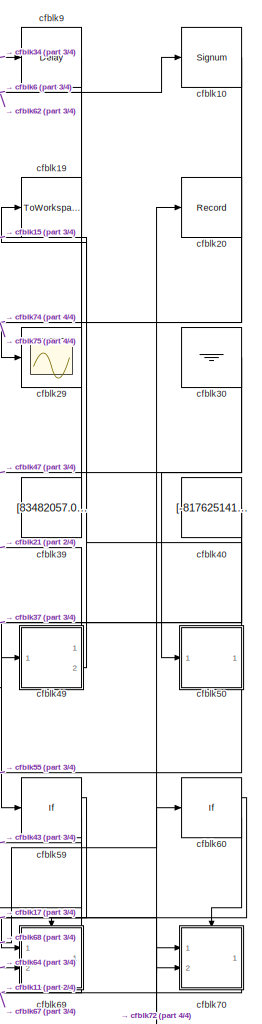
[diagram: root canvas - part 1/4, right side, full height]
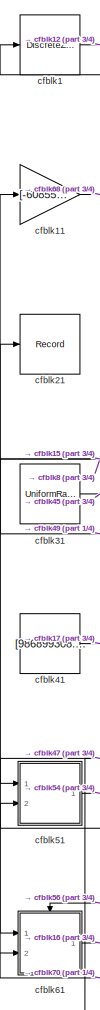
[diagram: root canvas - part 2/4, left side, full height]
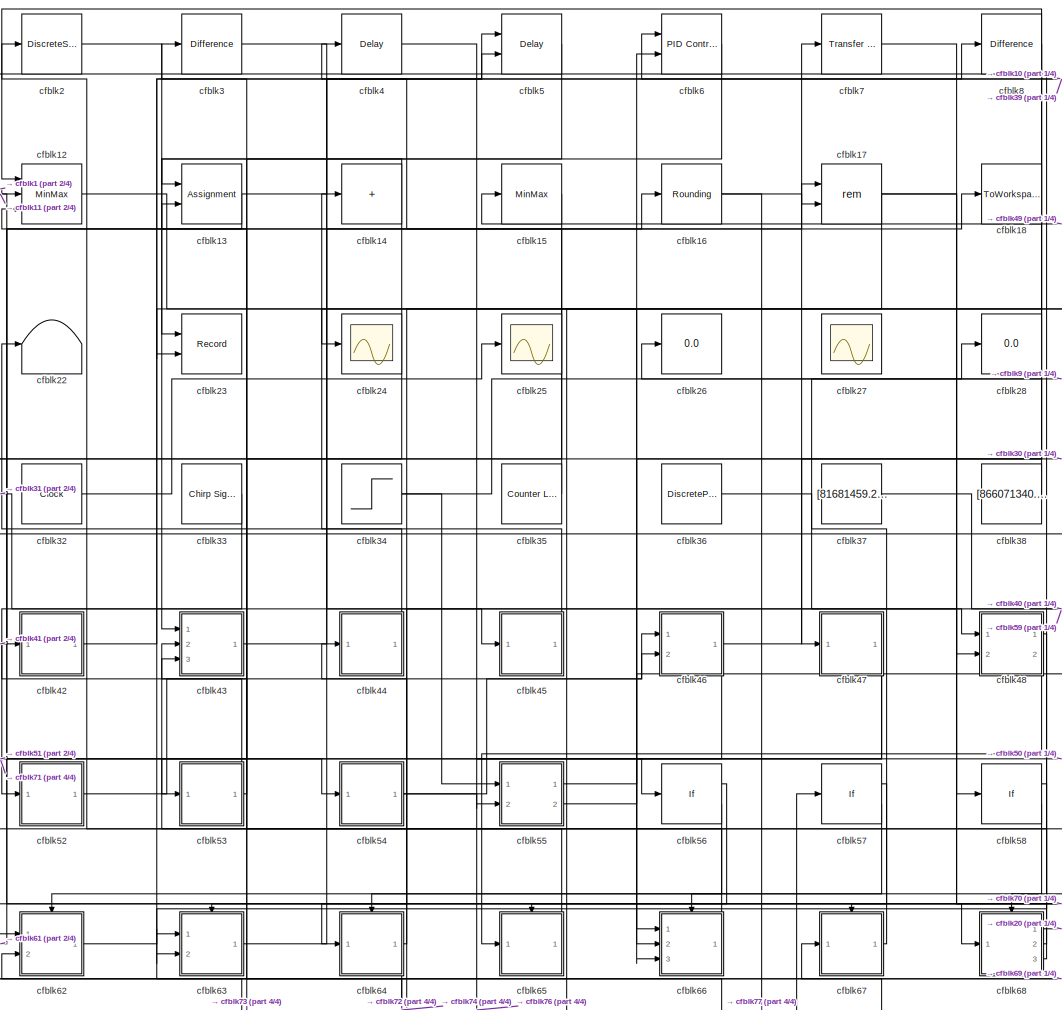
[diagram: root canvas - part 3/4, center side, full height]
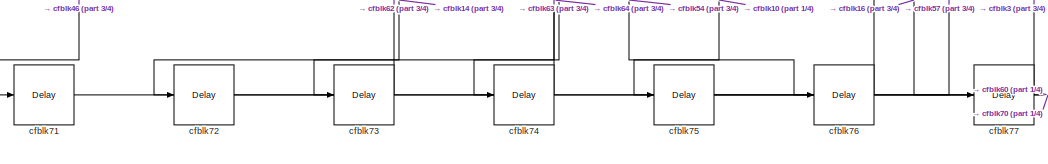
[diagram: root canvas - part 4/4, bottom center region]
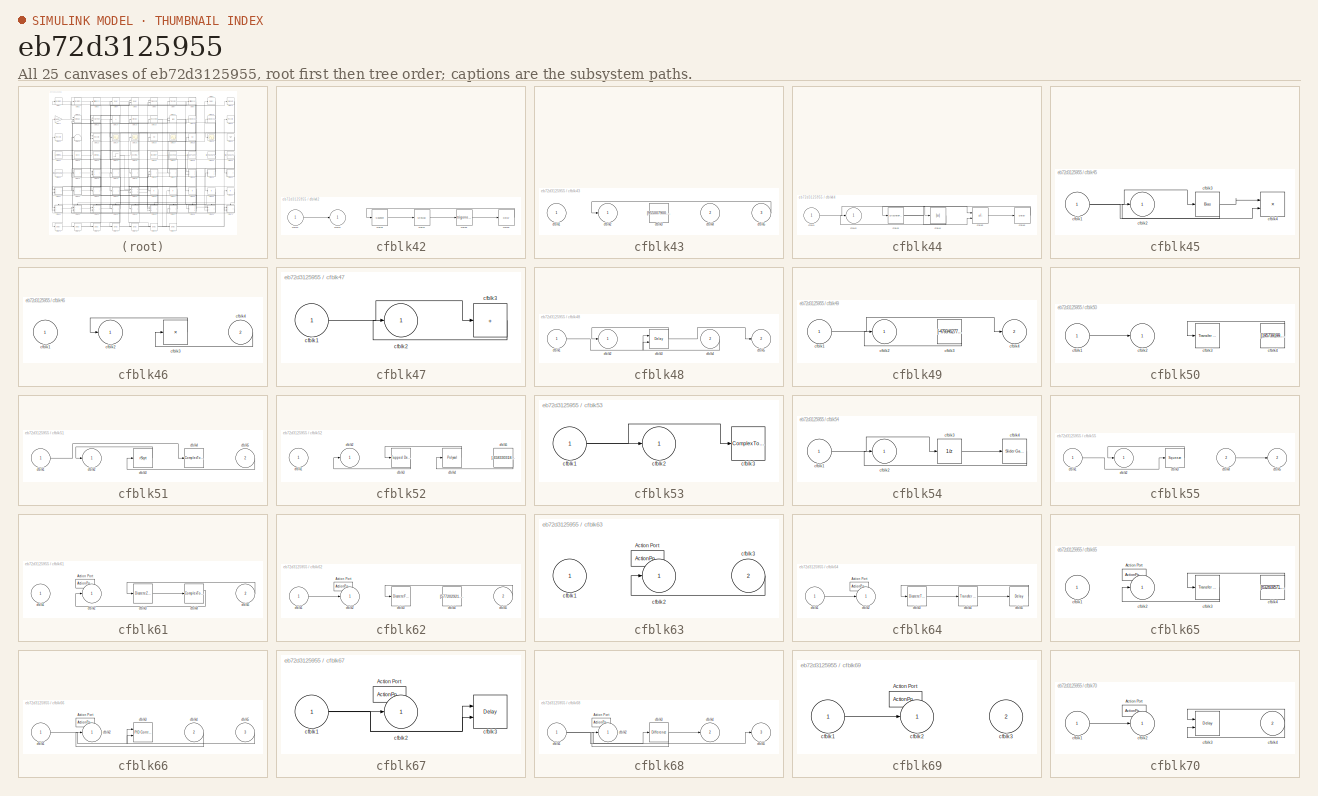
[diagram: thumbnail index - all 25 canvases of the model, root first then tree order]
MODEL slx_eb72d3125955
KIND model
CONFIG AbsTol = auto
CONFIG EnableMultiTasking = off
CONFIG FixedStep = auto
CONFIG MaxStep = auto
CONFIG MinStep = auto
CONFIG RelTol = 1e-3
CONFIG SampleTimeConstraint = Unconstrained
CONFIG SolverName = VariableStepAuto
CONFIG StartTime = 0.0
CONFIG StopTime = 10.0
BLOCK [DiscreteZeroPole] cfblk1
  Gain = 1
  Poles = [0 0.5]
BLOCK [Signum] cfblk10
BLOCK [Gain] cfblk11
  Gain = [-608557521.648675]
BLOCK [MinMax] cfblk12
  Inputs = 3
  Ports = [3, 1]
BLOCK [Assignment] cfblk13
  DiagnosticForDimensions = Warning
  IndexOptions = Index vector (dialog)
  Indices = 1
  OutputSizes = 1
  Ports = [2, 1]
BLOCK [Sum] cfblk14
  IconShape = rectangular
  Inputs = +
  Ports = [1, 1]
BLOCK [MinMax] cfblk15
  Function = max
  Ports = [1, 1]
BLOCK [Rounding] cfblk16
BLOCK [Math] cfblk17
  Operator = rem
  Ports = [2, 1]
BLOCK [ToWorkspace] cfblk18
  FixptAsFi = on
  MaxDataPoints = inf
  Ports = [1]
  SampleTime = -1
  SaveFormat = Timeseries
  VariableName = bfncngp
BLOCK [ToWorkspace] cfblk19
  FixptAsFi = on
  MaxDataPoints = inf
  Ports = [1]
  SampleTime = -1
  SaveFormat = Timeseries
  VariableName = mslfxss
BLOCK [DiscreteStateSpace] cfblk2
BLOCK [Record] cfblk20
  FileSettingsInternal = {"entries":[{"content":{"excelSettings":{"content":{},"type":"Streamout.ExcelSettings"}},"type":"Streamout.FileSettingStorage","uuid":"78cab240-d707-46c0-bab2-71765f668cae"}],"packageUris":["http://schema.mathworks.com/mf0/streamout_blocks/R2020a"],"version":"1.0"}
  Ports = [1]
  SignalsInternal = {"entries":[{"content":{"signals":[{"content":{"blockPath":["sampleModel137/cfblk20"],"channel":[],"dimensions":[1],"domain":"sampleModel137/cfblk20","lineColor":"#77ac30","plots":[1],"port":1,"sid":[""],"signalID":4817,"signalName":"cfblk68:1"},"type":"RecordBlkView.Signal","uuid":"5ba74064-0a93-45ca-96c5-9e64b5215f86"}]},"type":"RecordBlkView.InputSignals","uuid":"459eb6df-0716-4f70-a343-e867666...<+99ch>
  VisualizationBindings = {"sparklinesplugin":{"info":[{"bindingParametersList":[],"subplotID":1}]}}
BLOCK [Record] cfblk21
  FileSettingsInternal = {"entries":[{"content":{"excelSettings":{"content":{},"type":"Streamout.ExcelSettings"}},"type":"Streamout.FileSettingStorage","uuid":"bc3cb0e1-2b9a-4902-8bb5-5abf4e2b3de7"}],"packageUris":["http://schema.mathworks.com/mf0/streamout_blocks/R2020a"],"version":"1.0"}
  Ports = [1]
  SignalsInternal = {"entries":[{"content":{"signals":[{"content":{"blockPath":["sampleModel137/cfblk21"],"channel":[],"dimensions":[1],"domain":"sampleModel137/cfblk21","lineColor":"#4dbeee","plots":[1],"port":1,"sid":[""],"signalID":4821,"signalName":"cfblk49:1"},"type":"RecordBlkView.Signal","uuid":"d4e94c7a-f449-4d3a-8495-2eef223feb6d"}]},"type":"RecordBlkView.InputSignals","uuid":"f1cf74e8-d586-40d0-87c1-09232b5...<+99ch>
  VisualizationBindings = {"sparklinesplugin":{"info":[{"bindingParametersList":[],"subplotID":1}]}}
BLOCK [Terminator] cfblk22
BLOCK [Record] cfblk23
  CompatibilityTag = XY
  FileSettingsInternal = {"entries":[{"content":{"excelSettings":{"content":{},"type":"Streamout.ExcelSettings"}},"type":"Streamout.FileSettingStorage","uuid":"2b119019-7ec8-40aa-a939-0d8a92bc28e8"}],"packageUris":["http://schema.mathworks.com/mf0/streamout_blocks/R2020a"],"version":"1.0"}
  Layout = [1 1]
  Ports = [2]
  SignalsInternal = {"entries":[{"content":{"signals":[{"content":{"blockPath":["sampleModel137/cfblk23"],"channel":[],"dimensions":[1],"domain":"sampleModel137/cfblk23","lineColor":"#a2142f","plots":[1],"port":1,"sid":[""],"signalID":4825,"signalName":"cfblk2"},"type":"RecordBlkView.Signal","uuid":"4b9917a8-76f8-4205-8d4f-0c51dee1f9f1"},{"content":{"blockPath":["sampleModel137/cfblk23"],"channel":[],"dimensions":[1]...<+381ch>
  VisualizationBindings = {"xyplotplugin":{"info":[{"series":[{"bindingParametersList":[{"parameter":"X-Axis","signalID":4825,"signalName":"cfblk2"},{"parameter":"Y-Axis","signalID":4829,"signalName":"cfblk8"}],"seriesID":38646}],"subplotID":1}]}}
BLOCK [Scope] cfblk24
  Floating = off
  NumInputPorts = 1
  Ports = [1]
BLOCK [Scope] cfblk25
  Floating = off
  NumInputPorts = 1
  Ports = [1]
BLOCK [Display] cfblk26
  Decimation = 1
  Ports = [1]
BLOCK [Scope] cfblk27
  Floating = on
  NumInputPorts = 1
  Ports = []
BLOCK [Display] cfblk28
  Decimation = 1
  Ports = [1]
BLOCK [Scope] cfblk29
  Floating = off
  NumInputPorts = 1
  Ports = [1]
BLOCK [Reference] cfblk3  REF=simulink/Discrete/Difference
  Ports = [1, 1]
  SourceBlock = simulink/Discrete/Difference
  SourceProductBaseCode = SL
  SourceType = Difference
BLOCK [Ground] cfblk30
BLOCK [UniformRandomNumber] cfblk31
  Maximum = [821587507.931127]
  Minimum = [-3748405739.129770]
  SampleTime = 0.1
  Seed = [41408692.000000]
BLOCK [Clock] cfblk32
BLOCK [Reference] cfblk33  REF=simulink/Sources/Chirp Signal
  Ports = [0, 1]
  SourceBlock = simulink/Sources/Chirp Signal
  SourceProductBaseCode = SL
  SourceType = chirp
BLOCK [Step] cfblk34
  After = [-424292233.508765]
  Before = [-628794468.071128]
  SampleTime = 0
  Time = [44.000000]
BLOCK [Reference] cfblk35  REF=simulink/Sources/Counter
Limited
  Ports = [0, 1]
  SourceBlock = simulink/Sources/Counter\nLimited
  SourceProductBaseCode = SL
  SourceType = Counter Limited
BLOCK [DiscretePulseGenerator] cfblk36
  Amplitude = [628298384.607478]
  Period = [32439850.198564]
  PhaseDelay = [8.000000]
  Ports = [0, 1]
  PulseType = Time based
  PulseWidth = 5
BLOCK [Constant] cfblk37
  SampleTime = 1
  Value = [81681459.214216]
BLOCK [Constant] cfblk38
  SampleTime = 1
  Value = [866071340.352802]
BLOCK [Constant] cfblk39
  SampleTime = 1
  Value = [83482057.081967]
BLOCK [Delay] cfblk4
  InputPortMap = u0
  Ports = [1, 1]
  SampleTime = 1
BLOCK [Constant] cfblk40
  SampleTime = 1
  Value = [-817625141.120523]
BLOCK [Constant] cfblk41
  SampleTime = 1
  Value = [986899308.796991]
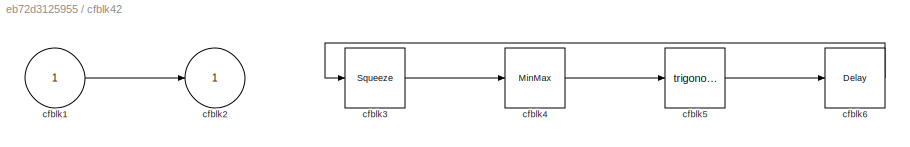
BLOCK [SubSystem] cfblk42
  Ports = [1, 1]
  RequestExecContextInheritance = off
BLOCK [Inport] cfblk42/cfblk1
BLOCK [Outport] cfblk42/cfblk2
BLOCK [Squeeze] cfblk42/cfblk3
BLOCK [MinMax] cfblk42/cfblk4
  Function = max
  Ports = [1, 1]
BLOCK [Trigonometry] cfblk42/cfblk5
  Ports = [1, 1]
BLOCK [Delay] cfblk42/cfblk6
  InputPortMap = u0
  Ports = [1, 1]
  SampleTime = 1
BLOCK [SubSystem] cfblk43
  Ports = [3, 1]
  RequestExecContextInheritance = off
BLOCK [Inport] cfblk43/cfblk1
BLOCK [Outport] cfblk43/cfblk2
BLOCK [Constant] cfblk43/cfblk3
  SampleTime = 1
  Value = [955007900.458523]
BLOCK [Inport] cfblk43/cfblk4
  Port = 2
BLOCK [Inport] cfblk43/cfblk5
  Port = 3
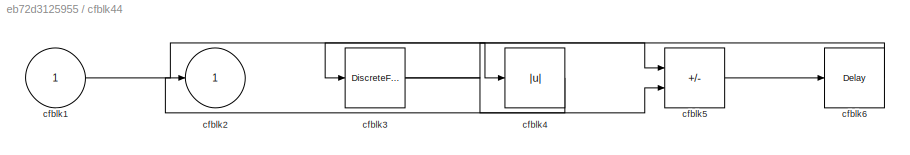
BLOCK [SubSystem] cfblk44
  Ports = [1, 1]
  RequestExecContextInheritance = off
BLOCK [Inport] cfblk44/cfblk1
BLOCK [Outport] cfblk44/cfblk2
BLOCK [DiscreteFilter] cfblk44/cfblk3
  InputPortMap = u0
  Ports = [1, 1]
  SampleTime = 1
BLOCK [Abs] cfblk44/cfblk4
  SaturateOnIntegerOverflow = off
BLOCK [Sum] cfblk44/cfblk5
  IconShape = rectangular
  Inputs = +-
  Ports = [2, 1]
BLOCK [Delay] cfblk44/cfblk6
  InputPortMap = u0
  Ports = [1, 1]
  SampleTime = 1
BLOCK [SubSystem] cfblk45
  Ports = [1, 1]
  RequestExecContextInheritance = off
BLOCK [Inport] cfblk45/cfblk1
BLOCK [Outport] cfblk45/cfblk2
BLOCK [Bias] cfblk45/cfblk3
  Bias = [-716241276.634406]
  SaturateOnIntegerOverflow = off
BLOCK [Product] cfblk45/cfblk4
  Ports = [2, 1]
BLOCK [SubSystem] cfblk46
  Ports = [2, 1]
  RequestExecContextInheritance = off
BLOCK [Inport] cfblk46/cfblk1
BLOCK [Outport] cfblk46/cfblk2
BLOCK [Product] cfblk46/cfblk3
  Inputs = *
  Ports = [1, 1]
BLOCK [Inport] cfblk46/cfblk4
  Port = 2
BLOCK [SubSystem] cfblk47
  Ports = [1, 1]
  RequestExecContextInheritance = off
BLOCK [Inport] cfblk47/cfblk1
BLOCK [Outport] cfblk47/cfblk2
BLOCK [Sum] cfblk47/cfblk3
  IconShape = rectangular
  Inputs = +
  Ports = [1, 1]
BLOCK [SubSystem] cfblk48
  Ports = [2, 2]
  RequestExecContextInheritance = off
BLOCK [Inport] cfblk48/cfblk1
BLOCK [Outport] cfblk48/cfblk2
BLOCK [Delay] cfblk48/cfblk3
  DelayLengthSource = Input port
  InputPortMap = u0,p1
  Ports = [2, 1]
  SampleTime = 1
BLOCK [Inport] cfblk48/cfblk4
  Port = 2
BLOCK [Outport] cfblk48/cfblk5
  Port = 2
BLOCK [SubSystem] cfblk49
  Ports = [1, 2]
  RequestExecContextInheritance = off
BLOCK [Inport] cfblk49/cfblk1
BLOCK [Outport] cfblk49/cfblk2
BLOCK [Constant] cfblk49/cfblk3
  SampleTime = 1
  Value = [-479346277.311574]
BLOCK [Outport] cfblk49/cfblk4
  Port = 2
BLOCK [Delay] cfblk5
  InputPortMap = u0,e6
  Ports = [2, 1]
  SampleTime = 1
  ShowEnablePort = on
BLOCK [SubSystem] cfblk50
  Ports = [1, 1]
  RequestExecContextInheritance = off
BLOCK [Inport] cfblk50/cfblk1
BLOCK [Outport] cfblk50/cfblk2
BLOCK [Reference] cfblk50/cfblk3  REF=simulink/Discrete/Transfer Fcn
Lead or Lag
  Ports = [1, 1]
  SourceBlock = simulink/Discrete/Transfer Fcn\nLead or Lag
  SourceProductBaseCode = SL
  SourceType = Lead or Lag Compensator
BLOCK [Constant] cfblk50/cfblk4
  SampleTime = 1
  Value = [195739199.430288]
BLOCK [SubSystem] cfblk51
  Ports = [2, 1]
  RequestExecContextInheritance = off
BLOCK [Inport] cfblk51/cfblk1
BLOCK [Outport] cfblk51/cfblk2
BLOCK [Sqrt] cfblk51/cfblk3
  AlgorithmType = Newton-Raphson
  Operator = rSqrt
BLOCK [ComplexToRealImag] cfblk51/cfblk4
  Ports = [1, 2]
BLOCK [Inport] cfblk51/cfblk5
  Port = 2
BLOCK [SubSystem] cfblk52
  Ports = [1, 1]
  RequestExecContextInheritance = off
BLOCK [Inport] cfblk52/cfblk1
BLOCK [Outport] cfblk52/cfblk2
BLOCK [Reference] cfblk52/cfblk3  REF=simulink/Discrete/Tapped Delay
  Ports = [1, 1]
  SourceBlock = simulink/Discrete/Tapped Delay
  SourceProductBaseCode = SL
  SourceType = Tapped Delay Line
BLOCK [Polyval] cfblk52/cfblk4
  Coefs = [ +2.081618890e-019, -1.441693666e-014, +4.719686976e-010, -8.536869453e-006, +1.621573104e-001, -8.087801117e+001 ]
BLOCK [Constant] cfblk52/cfblk5
  SampleTime = 1
  Value = [-658330318.926131]
BLOCK [SubSystem] cfblk53
  Ports = [1, 1]
  RequestExecContextInheritance = off
BLOCK [Inport] cfblk53/cfblk1
BLOCK [Outport] cfblk53/cfblk2
BLOCK [ComplexToMagnitudeAngle] cfblk53/cfblk3
  Ports = [1, 2]
BLOCK [SubSystem] cfblk54
  Ports = [1, 1]
  RequestExecContextInheritance = off
BLOCK [Inport] cfblk54/cfblk1
BLOCK [Outport] cfblk54/cfblk2
BLOCK [UnitDelay] cfblk54/cfblk3
  HasFrameUpgradeWarning = on
BLOCK [Reference] cfblk54/cfblk4  REF=simulink/Math
Operations/Slider
Gain
  Ports = [1, 1]
  SourceBlock = simulink/Math\nOperations/Slider\nGain
  SourceProductBaseCode = SL
  SourceType = Slider Gain
BLOCK [SubSystem] cfblk55
  Ports = [2, 2]
  RequestExecContextInheritance = off
BLOCK [Inport] cfblk55/cfblk1
BLOCK [Outport] cfblk55/cfblk2
BLOCK [Squeeze] cfblk55/cfblk3
BLOCK [Inport] cfblk55/cfblk4
  Port = 2
BLOCK [Outport] cfblk55/cfblk5
  Port = 2
BLOCK [If] cfblk56
  IfExpression = u1 >= 0
  Ports = [1, 2]
  SampleTime = 1
BLOCK [If] cfblk57
  IfExpression = u1 >= 0
  Ports = [1, 2]
  SampleTime = 1
BLOCK [If] cfblk58
  IfExpression = u1 >= 0
  Ports = [1, 2]
  SampleTime = 1
BLOCK [If] cfblk59
  IfExpression = u1 >= 0
  Ports = [1, 2]
  SampleTime = 1
BLOCK [Reference] cfblk6  REF=slpidlib/PID Controller (2DOF)
  Ports = [2, 1]
  SourceBlock = slpidlib/PID Controller (2DOF)
  SourceProductBaseCode = SL
  SourceType = PID 2dof
BLOCK [If] cfblk60
  IfExpression = u1 >= 0
  Ports = [1, 2]
  SampleTime = 1
BLOCK [SubSystem] cfblk61
  Ports = [2, 1, 0, 0, 0, 0, 0, 1]
  RequestExecContextInheritance = off
  TreatAsAtomicUnit = on
BLOCK [ActionPort] cfblk61/Action Port
  ActionPortLabel = if(u1 >= 0)
BLOCK [Inport] cfblk61/cfblk1
BLOCK [Outport] cfblk61/cfblk2
BLOCK [DiscreteZeroPole] cfblk61/cfblk3
  Gain = 1
  Poles = [0 0.5]
  SampleTime = -1
BLOCK [ComplexToMagnitudeAngle] cfblk61/cfblk4
  Ports = [1, 2]
BLOCK [Inport] cfblk61/cfblk5
  Port = 2
BLOCK [SubSystem] cfblk62
  Ports = [2, 1, 0, 0, 0, 0, 0, 1]
  RequestExecContextInheritance = off
  TreatAsAtomicUnit = on
BLOCK [ActionPort] cfblk62/Action Port
  ActionPortLabel = else
BLOCK [Inport] cfblk62/cfblk1
BLOCK [Outport] cfblk62/cfblk2
BLOCK [DiscreteFilter] cfblk62/cfblk3
  InputPortMap = u0
  Ports = [1, 1]
BLOCK [Constant] cfblk62/cfblk4
  SampleTime = 1
  Value = [577202921.715631]
BLOCK [Inport] cfblk62/cfblk5
  Port = 2
BLOCK [SubSystem] cfblk63
  Ports = [2, 1, 0, 0, 0, 0, 0, 1]
  RequestExecContextInheritance = off
  TreatAsAtomicUnit = on
BLOCK [ActionPort] cfblk63/Action Port
  ActionPortLabel = if(u1 >= 0)
BLOCK [Inport] cfblk63/cfblk1
BLOCK [Outport] cfblk63/cfblk2
BLOCK [Inport] cfblk63/cfblk3
  Port = 2
BLOCK [SubSystem] cfblk64
  Ports = [1, 1, 0, 0, 0, 0, 0, 1]
  RequestExecContextInheritance = off
  TreatAsAtomicUnit = on
BLOCK [ActionPort] cfblk64/Action Port
  ActionPortLabel = else
BLOCK [Inport] cfblk64/cfblk1
BLOCK [Outport] cfblk64/cfblk2
BLOCK [DiscreteTransferFcn] cfblk64/cfblk3
  InputPortMap = u0
  Ports = [1, 1]
BLOCK [Reference] cfblk64/cfblk4  REF=simulink/Discrete/Transfer Fcn
Lead or Lag
  Ports = [1, 1]
  SourceBlock = simulink/Discrete/Transfer Fcn\nLead or Lag
  SourceProductBaseCode = SL
  SourceType = Lead or Lag Compensator
BLOCK [Delay] cfblk64/cfblk5
  InputPortMap = u0
  Ports = [1, 1]
BLOCK [SubSystem] cfblk65
  Ports = [1, 1, 0, 0, 0, 0, 0, 1]
  RequestExecContextInheritance = off
  TreatAsAtomicUnit = on
BLOCK [ActionPort] cfblk65/Action Port
  ActionPortLabel = if(u1 >= 0)
BLOCK [Inport] cfblk65/cfblk1
BLOCK [Outport] cfblk65/cfblk2
BLOCK [Reference] cfblk65/cfblk3  REF=simulink/Discrete/Transfer Fcn
Real Zero
  Ports = [1, 1]
  SourceBlock = simulink/Discrete/Transfer Fcn\nReal Zero
  SourceProductBaseCode = SL
  SourceType = Transfer Fcn Real Zero
BLOCK [Constant] cfblk65/cfblk4
  SampleTime = 1
  Value = [632609571.556403]
BLOCK [SubSystem] cfblk66
  Ports = [3, 1, 0, 0, 0, 0, 0, 1]
  RequestExecContextInheritance = off
  TreatAsAtomicUnit = on
BLOCK [ActionPort] cfblk66/Action Port
  ActionPortLabel = else
BLOCK [Inport] cfblk66/cfblk1
BLOCK [Outport] cfblk66/cfblk2
BLOCK [Reference] cfblk66/cfblk3  REF=slpidlib/PID Controller (2DOF)
  Ports = [2, 1]
  SourceBlock = slpidlib/PID Controller (2DOF)
  SourceProductBaseCode = SL
  SourceType = PID 2dof
BLOCK [Inport] cfblk66/cfblk4
  Port = 2
BLOCK [Inport] cfblk66/cfblk5
  Port = 3
BLOCK [SubSystem] cfblk67
  Ports = [1, 1, 0, 0, 0, 0, 0, 1]
  RequestExecContextInheritance = off
  TreatAsAtomicUnit = on
BLOCK [ActionPort] cfblk67/Action Port
  ActionPortLabel = if(u1 >= 0)
BLOCK [Inport] cfblk67/cfblk1
BLOCK [Outport] cfblk67/cfblk2
BLOCK [Delay] cfblk67/cfblk3
  DelayLengthSource = Input port
  InputPortMap = u0,p1
  Ports = [2, 1]
BLOCK [SubSystem] cfblk68
  Ports = [1, 3, 0, 0, 0, 0, 0, 1]
  RequestExecContextInheritance = off
  TreatAsAtomicUnit = on
BLOCK [ActionPort] cfblk68/Action Port
  ActionPortLabel = else
BLOCK [Inport] cfblk68/cfblk1
BLOCK [Outport] cfblk68/cfblk2
BLOCK [Reference] cfblk68/cfblk3  REF=simulink/Discrete/Difference
  Ports = [1, 1]
  SourceBlock = simulink/Discrete/Difference
  SourceProductBaseCode = SL
  SourceType = Difference
BLOCK [Outport] cfblk68/cfblk4
  Port = 2
BLOCK [Outport] cfblk68/cfblk5
  Port = 3
BLOCK [SubSystem] cfblk69
  Ports = [2, 1, 0, 0, 0, 0, 0, 1]
  RequestExecContextInheritance = off
  TreatAsAtomicUnit = on
BLOCK [ActionPort] cfblk69/Action Port
  ActionPortLabel = if(u1 >= 0)
BLOCK [Inport] cfblk69/cfblk1
BLOCK [Outport] cfblk69/cfblk2
BLOCK [Inport] cfblk69/cfblk3
  Port = 2
BLOCK [Reference] cfblk7  REF=simulink/Discrete/Transfer Fcn
First Order
  Ports = [1, 1]
  SourceBlock = simulink/Discrete/Transfer Fcn\nFirst Order
  SourceProductBaseCode = SL
  SourceType = First Order Transfer Fcn
BLOCK [SubSystem] cfblk70
  Ports = [2, 1, 0, 0, 0, 0, 0, 1]
  RequestExecContextInheritance = off
  TreatAsAtomicUnit = on
BLOCK [ActionPort] cfblk70/Action Port
  ActionPortLabel = else
BLOCK [Inport] cfblk70/cfblk1
BLOCK [Outport] cfblk70/cfblk2
BLOCK [Delay] cfblk70/cfblk3
  InputPortMap = u0,e6
  Ports = [2, 1]
  ShowEnablePort = on
BLOCK [Inport] cfblk70/cfblk4
  Port = 2
BLOCK [Delay] cfblk71
  InputPortMap = u0
  Ports = [1, 1]
  SampleTime = 1
BLOCK [Delay] cfblk72
  InputPortMap = u0
  Ports = [1, 1]
  SampleTime = 1
BLOCK [Delay] cfblk73
  InputPortMap = u0
  Ports = [1, 1]
  SampleTime = 1
BLOCK [Delay] cfblk74
  InputPortMap = u0
  Ports = [1, 1]
  SampleTime = 1
BLOCK [Delay] cfblk75
  InputPortMap = u0
  Ports = [1, 1]
  SampleTime = 1
BLOCK [Delay] cfblk76
  InputPortMap = u0
  Ports = [1, 1]
  SampleTime = 1
BLOCK [Delay] cfblk77
  InputPortMap = u0
  Ports = [1, 1]
  SampleTime = 1
BLOCK [Reference] cfblk8  REF=simulink/Discrete/Difference
  Ports = [1, 1]
  SourceBlock = simulink/Discrete/Difference
  SourceProductBaseCode = SL
  SourceType = Difference
BLOCK [Delay] cfblk9
  InputPortMap = u0
  Ports = [1, 1]
  SampleTime = 1
NET cfblk10:1 -> cfblk74:1, cfblk75:1
LINE cfblk11:1 -> cfblk68:1
LINE cfblk12:1 -> cfblk66:1
NET cfblk13:1 -> cfblk12:3, cfblk5:1
NET cfblk14:1 -> cfblk13:1, cfblk73:1
LINE cfblk15:1 -> cfblk61:1
NET cfblk16:1 -> cfblk17:2, cfblk77:1
NET cfblk17:1 -> cfblk24:1, cfblk69:1, cfblk70:2
LINE cfblk1:1 -> cfblk12:2
LINE cfblk2:1 -> cfblk23:1
NET cfblk30:1 -> cfblk47:1, cfblk50:1
LINE cfblk31:1 -> cfblk45:1
LINE cfblk32:1 -> cfblk25:1
LINE cfblk33:1 -> cfblk52:1
NET cfblk34:1 -> cfblk55:1, cfblk9:1
LINE cfblk35:1 -> cfblk4:1
LINE cfblk36:1 -> cfblk48:2
LINE cfblk37:1 -> cfblk59:1
LINE cfblk38:1 -> cfblk26:1
LINE cfblk39:1 -> cfblk6:1
LINE cfblk3:1 -> cfblk48:1
NET cfblk40:1 -> cfblk64:1, cfblk69:2
LINE cfblk41:1 -> cfblk17:1
LINE cfblk42/cfblk1:1 -> cfblk42/cfblk2:1
LINE cfblk42/cfblk3:1 -> cfblk42/cfblk4:1
LINE cfblk42/cfblk4:1 -> cfblk42/cfblk5:1
LINE cfblk42/cfblk5:1 -> cfblk42/cfblk6:1
LINE cfblk42/cfblk6:1 -> cfblk42/cfblk3:1
LINE cfblk42:1 -> cfblk5:2
LINE cfblk43/cfblk5:1 -> cfblk43/cfblk2:1
LINE cfblk43:1 -> cfblk18:1
LINE cfblk44/cfblk1:1 -> cfblk44/cfblk4:1
NET cfblk44/cfblk3:1 -> cfblk44/cfblk5:1, cfblk44/cfblk5:2
LINE cfblk44/cfblk4:1 -> cfblk44/cfblk2:1
LINE cfblk44/cfblk5:1 -> cfblk44/cfblk6:1
LINE cfblk44/cfblk6:1 -> cfblk44/cfblk3:1
LINE cfblk44:1 -> cfblk14:1
NET cfblk45/cfblk1:1 -> cfblk45/cfblk3:1, cfblk45/cfblk4:2
NET cfblk45/cfblk3:1 -> cfblk45/cfblk2:1, cfblk45/cfblk4:1
LINE cfblk45:1 -> cfblk22:1
LINE cfblk46/cfblk3:1 -> cfblk46/cfblk2:1
LINE cfblk46/cfblk4:1 -> cfblk46/cfblk3:1
NET cfblk46:1 -> cfblk71:1, cfblk7:1
LINE cfblk47/cfblk1:1 -> cfblk47/cfblk3:1
LINE cfblk47/cfblk3:1 -> cfblk47/cfblk2:1
NET cfblk47:1 -> cfblk51:1, cfblk66:2
LINE cfblk48/cfblk1:1 -> cfblk48/cfblk3:2
NET cfblk48/cfblk3:1 -> cfblk48/cfblk2:1, cfblk48/cfblk5:1
LINE cfblk48/cfblk4:1 -> cfblk48/cfblk3:1
LINE cfblk48:1 -> cfblk63:2
LINE cfblk48:2 -> cfblk65:1
LINE cfblk49/cfblk1:1 -> cfblk49/cfblk4:1
LINE cfblk49/cfblk3:1 -> cfblk49/cfblk2:1
LINE cfblk49:1 -> cfblk21:1
LINE cfblk49:2 -> cfblk15:1
LINE cfblk4:1 -> cfblk56:1
LINE cfblk50/cfblk1:1 -> cfblk50/cfblk2:1
LINE cfblk50/cfblk4:1 -> cfblk50/cfblk3:1
NET cfblk50:1 -> cfblk19:1, cfblk55:2
LINE cfblk51/cfblk1:1 -> cfblk51/cfblk4:1
LINE cfblk51/cfblk3:1 -> cfblk51/cfblk2:1
LINE cfblk51/cfblk5:1 -> cfblk51/cfblk3:1
LINE cfblk51:1 -> cfblk54:1
LINE cfblk52/cfblk3:1 -> cfblk52/cfblk2:1
LINE cfblk52/cfblk4:1 -> cfblk52/cfblk3:1
LINE cfblk52/cfblk5:1 -> cfblk52/cfblk4:1
LINE cfblk52:1 -> cfblk46:1
NET cfblk53/cfblk1:1 -> cfblk53/cfblk2:1, cfblk53/cfblk3:1
NET cfblk53:1 -> cfblk13:2, cfblk2:1
LINE cfblk54/cfblk1:1 -> cfblk54/cfblk3:1
LINE cfblk54/cfblk3:1 -> cfblk54/cfblk4:1
LINE cfblk54/cfblk4:1 -> cfblk54/cfblk2:1
NET cfblk54:1 -> cfblk46:2, cfblk76:1
LINE cfblk55/cfblk1:1 -> cfblk55/cfblk3:1
LINE cfblk55/cfblk3:1 -> cfblk55/cfblk2:1
LINE cfblk55/cfblk4:1 -> cfblk55/cfblk5:1
LINE cfblk55:1 -> cfblk6:2
LINE cfblk55:2 -> cfblk49:1
LINE cfblk56:1 -> cfblk61:ifaction
LINE cfblk56:2 -> cfblk62:ifaction
LINE cfblk57:1 -> cfblk63:ifaction
LINE cfblk57:2 -> cfblk64:ifaction
LINE cfblk58:1 -> cfblk65:ifaction
LINE cfblk58:2 -> cfblk66:ifaction
LINE cfblk59:1 -> cfblk67:ifaction
LINE cfblk59:2 -> cfblk68:ifaction
LINE cfblk5:1 -> cfblk43:1
LINE cfblk60:1 -> cfblk69:ifaction
LINE cfblk60:2 -> cfblk70:ifaction
LINE cfblk61/cfblk3:1 -> cfblk61/cfblk4:1
LINE cfblk61/cfblk4:1 -> cfblk61/cfblk2:1
LINE cfblk61/cfblk5:1 -> cfblk61/cfblk3:1
LINE cfblk61:1 -> cfblk16:1
LINE cfblk62/cfblk1:1 -> cfblk62/cfblk2:1
LINE cfblk62/cfblk5:1 -> cfblk62/cfblk3:1
LINE cfblk62:1 -> cfblk10:1
LINE cfblk63/cfblk3:1 -> cfblk63/cfblk2:1
LINE cfblk63:1 -> cfblk8:1
LINE cfblk64/cfblk1:1 -> cfblk64/cfblk2:1
LINE cfblk64/cfblk3:1 -> cfblk64/cfblk4:1
LINE cfblk64/cfblk4:1 -> cfblk64/cfblk5:1
LINE cfblk64/cfblk5:1 -> cfblk64/cfblk3:1
NET cfblk64:1 -> cfblk44:1, cfblk72:1
LINE cfblk65/cfblk3:1 -> cfblk65/cfblk2:1
LINE cfblk65/cfblk4:1 -> cfblk65/cfblk3:1
LINE cfblk65:1 -> cfblk43:2
LINE cfblk66/cfblk1:1 -> cfblk66/cfblk3:1
LINE cfblk66/cfblk4:1 -> cfblk66/cfblk2:1
LINE cfblk66/cfblk5:1 -> cfblk66/cfblk3:2
LINE cfblk66:1 -> cfblk42:1
NET cfblk67/cfblk1:1 -> cfblk67/cfblk2:1, cfblk67/cfblk3:1, cfblk67/cfblk3:2
LINE cfblk67:1 -> cfblk28:1
NET cfblk68/cfblk1:1 -> cfblk68/cfblk3:1, cfblk68/cfblk5:1
NET cfblk68/cfblk3:1 -> cfblk68/cfblk2:1, cfblk68/cfblk4:1
LINE cfblk68:1 -> cfblk20:1
LINE cfblk68:2 -> cfblk51:2
LINE cfblk68:3 -> cfblk1:1
LINE cfblk69/cfblk1:1 -> cfblk69/cfblk2:1
NET cfblk69:1 -> cfblk43:3, cfblk67:1
LINE cfblk6:1 -> cfblk53:1
LINE cfblk70/cfblk1:1 -> cfblk70/cfblk2:1
NET cfblk70/cfblk4:1 -> cfblk70/cfblk3:1, cfblk70/cfblk3:2
LINE cfblk70:1 -> cfblk11:1
LINE cfblk71:1 -> cfblk57:1
LINE cfblk72:1 -> cfblk60:1
LINE cfblk73:1 -> cfblk62:2
LINE cfblk74:1 -> cfblk63:1
LINE cfblk75:1 -> cfblk70:1
LINE cfblk76:1 -> cfblk62:1
LINE cfblk77:1 -> cfblk3:1
LINE cfblk7:1 -> cfblk58:1
NET cfblk8:1 -> cfblk12:1, cfblk23:2, cfblk61:2, cfblk66:3
LINE cfblk9:1 -> cfblk29:1
note: NET lines group one-source signal fan-out (src -> all destinations, sorted); 1:1 wires keep LINE
